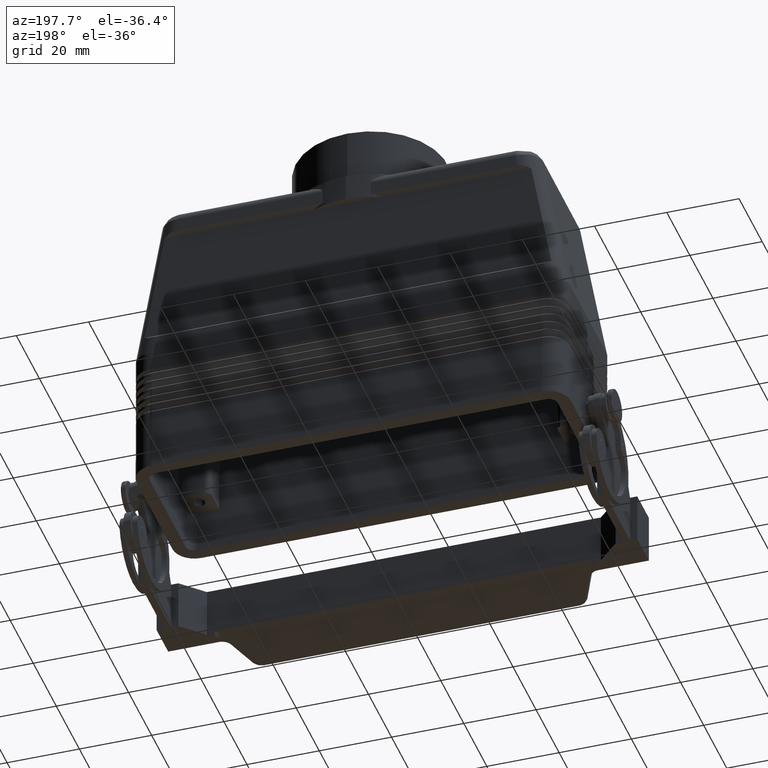
[diagram: clean part render]
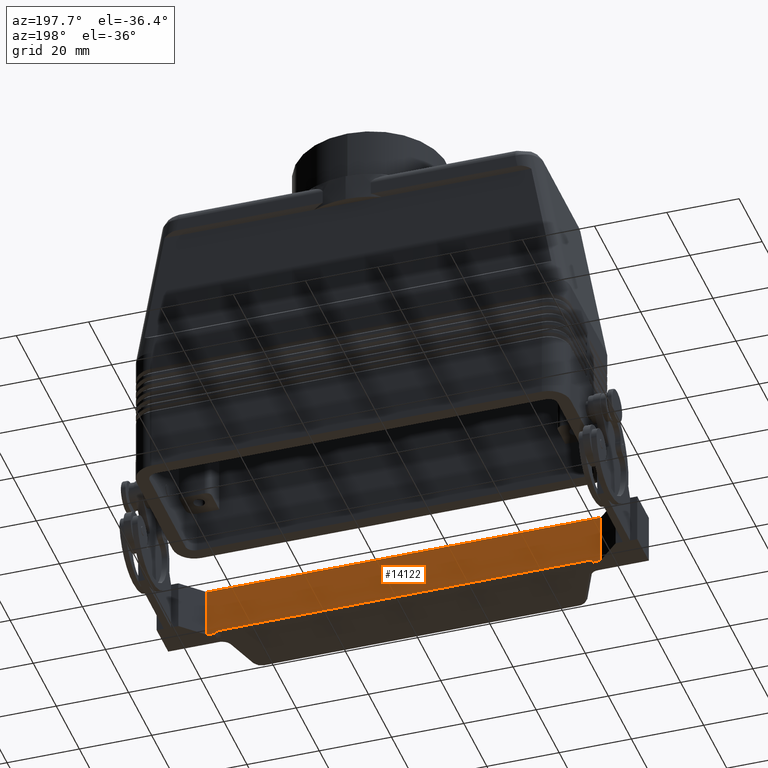
[diagram: same view with one face highlighted and labeled with its STEP entity id]
A machine part, auxiliary view. The second image highlights one B-rep face of the part: STEP entity #14122.
In plain terms, the highlighted face is a freeform B-spline surface patch.
Its self-contained STEP definition (entity closure, byte-faithful):
#12051=CARTESIAN_POINT('',(54.500000000000000,-28.050000000000015,-6.499999999999998));
#12052=VERTEX_POINT('',#12051);
#12059=CARTESIAN_POINT('',(-54.500000000000000,-28.050000000000015,-6.499999999999998));
#12060=VERTEX_POINT('',#12059);
#12061=CARTESIAN_POINT('',(-54.500000000000000,-28.050000000000015,-6.499999999999998));
#12062=DIRECTION('',(1.0,0.0,0.0));
#12063=VECTOR('',#12062,109.0);
#12064=LINE('',#12061,#12063);
#12065=EDGE_CURVE('',#12060,#12052,#12064,.T.);
#13460=CARTESIAN_POINT('',(-50.950314117284776,-28.050000000000082,-19.794692077166150));
#13461=VERTEX_POINT('',#13460);
#13481=CARTESIAN_POINT('',(50.950314117284783,-28.050000000000086,-19.794692077166150));
#13482=VERTEX_POINT('',#13481);
#13483=CARTESIAN_POINT('',(50.950314117284783,-28.050000000000086,-19.794692077166150));
#13484=DIRECTION('',(-1.0,0.0,0.0));
#13485=VECTOR('',#13484,101.900628234569550);
#13486=LINE('',#13483,#13485);
#13487=EDGE_CURVE('',#13482,#13461,#13486,.T.);
#13856=CARTESIAN_POINT('',(52.500000000000000,-28.050000000000015,-20.500000000000000));
#13857=VERTEX_POINT('',#13856);
#13858=CARTESIAN_POINT('',(50.950314117284776,-28.050000000000011,-19.794692077166140));
#13859=CARTESIAN_POINT('',(51.208889825046526,-28.050000000000011,-19.794692077166140));
#13860=CARTESIAN_POINT('',(51.465028066649587,-28.050000000024987,-19.844584247127116));
#13861=CARTESIAN_POINT('',(51.859495377402176,-28.050000000024987,-20.001753512446442));
#13862=CARTESIAN_POINT('',(52.005775612628980,-28.050000000001177,-20.081501488069712));
#13863=CARTESIAN_POINT('',(52.272646136305177,-28.050000000001177,-20.270944886503976));
#13864=CARTESIAN_POINT('',(52.393081707999514,-28.050000000000018,-20.379200464476899));
#13865=CARTESIAN_POINT('',(52.500000000000000,-28.050000000000018,-20.500000000000004));
#13866=B_SPLINE_CURVE_WITH_KNOTS('',3,(#13858,#13859,#13860,#13861,#13862,#13863,#13864,#13865),.UNSPECIFIED.,.F.,.U.,(4,2,2,4),(0.0,0.077572712328525,0.127336946333134,0.175708844377288),.UNSPECIFIED.);
#13867=EDGE_CURVE('',#13482,#13857,#13866,.T.);
#14060=CARTESIAN_POINT('',(-52.500000000000000,-28.050000000000015,-20.500000000000000));
#14061=VERTEX_POINT('',#14060);
#14068=CARTESIAN_POINT('',(-52.500000000000000,-28.050000000000018,-20.500000000000004));
#14069=CARTESIAN_POINT('',(-52.315509543108050,-28.050000000000018,-20.291557075183245));
#14070=CARTESIAN_POINT('',(-52.091434250849709,-28.050000000000018,-20.121211186682594));
#14071=CARTESIAN_POINT('',(-51.703603884906016,-28.050000000000018,-19.933630600018986));
#14072=CARTESIAN_POINT('',(-51.559405310291964,-28.049999999999478,-19.882499715672541));
#14073=CARTESIAN_POINT('',(-51.259884017553539,-28.049999999999478,-19.812638478010914));
#14074=CARTESIAN_POINT('',(-51.105365215385632,-28.050000000000018,-19.794692077166140));
#14075=CARTESIAN_POINT('',(-50.950314117284776,-28.050000000000018,-19.794692077166140));
#14076=B_SPLINE_CURVE_WITH_KNOTS('',3,(#14068,#14069,#14070,#14071,#14072,#14073,#14074,#14075),.UNSPECIFIED.,.F.,.U.,(4,2,2,4),(0.0,0.083508480665934,0.129269888110245,0.175802405108095),.UNSPECIFIED.);
#14077=EDGE_CURVE('',#13461,#14061,#14076,.F.);
#14083=CARTESIAN_POINT('',(-54.500000000000000,-28.050000000000015,-20.500002568680511));
#14084=CARTESIAN_POINT('',(-54.500000000000000,-28.050000000000015,-6.499999999999996));
#14085=CARTESIAN_POINT('',(54.500000000000000,-28.050000000000015,-20.500002568680511));
#14086=CARTESIAN_POINT('',(54.500000000000000,-28.050000000000015,-6.499999999999996));
#14087=B_SPLINE_SURFACE_WITH_KNOTS('',1,1,((#14083,#14085),(#14084,#14086)),.UNSPECIFIED.,.F.,.F.,.U.,(2,2),(2,2),(0.0,14.000002568680515),(0.0,109.0),.UNSPECIFIED.);
#14088=ORIENTED_EDGE('',*,*,#12065,.T.);
#14089=CARTESIAN_POINT('',(54.500000000000000,-28.050000000000015,-20.500000000000000));
#14090=VERTEX_POINT('',#14089);
#14091=CARTESIAN_POINT('',(54.500000000000000,-28.050000000000015,-6.499999999999998));
#14092=DIRECTION('',(0.0,0.0,-1.0));
#14093=VECTOR('',#14092,14.000000000000002);
#14094=LINE('',#14091,#14093);
#14095=EDGE_CURVE('',#12052,#14090,#14094,.T.);
#14096=ORIENTED_EDGE('',*,*,#14095,.T.);
#14097=CARTESIAN_POINT('',(54.500000000000000,-28.050000000000015,-20.500000000000000));
#14098=DIRECTION('',(-1.0,0.0,0.0));
#14099=VECTOR('',#14098,2.0);
#14100=LINE('',#14097,#14099);
#14101=EDGE_CURVE('',#14090,#13857,#14100,.T.);
#14102=ORIENTED_EDGE('',*,*,#14101,.T.);
#14103=ORIENTED_EDGE('',*,*,#13867,.F.);
#14104=ORIENTED_EDGE('',*,*,#13487,.T.);
#14105=ORIENTED_EDGE('',*,*,#14077,.T.);
#14106=CARTESIAN_POINT('',(-54.500000000000000,-28.050000000000015,-20.500000000000000));
#14107=VERTEX_POINT('',#14106);
#14108=CARTESIAN_POINT('',(-54.500000000000000,-28.050000000000015,-20.500000000000000));
#14109=DIRECTION('',(1.0,0.0,0.0));
#14110=VECTOR('',#14109,2.0);
#14111=LINE('',#14108,#14110);
#14112=EDGE_CURVE('',#14107,#14061,#14111,.T.);
#14113=ORIENTED_EDGE('',*,*,#14112,.F.);
#14114=CARTESIAN_POINT('',(-54.500000000000000,-28.050000000000015,-6.499999999999998));
#14115=DIRECTION('',(0.0,0.0,-1.0));
#14116=VECTOR('',#14115,14.000000000000002);
#14117=LINE('',#14114,#14116);
#14118=EDGE_CURVE('',#12060,#14107,#14117,.T.);
#14119=ORIENTED_EDGE('',*,*,#14118,.F.);
#14120=EDGE_LOOP('',(#14088,#14096,#14102,#14103,#14104,#14105,#14113,#14119));
#14121=FACE_OUTER_BOUND('',#14120,.T.);
#14122=ADVANCED_FACE('',(#14121),#14087,.T.);